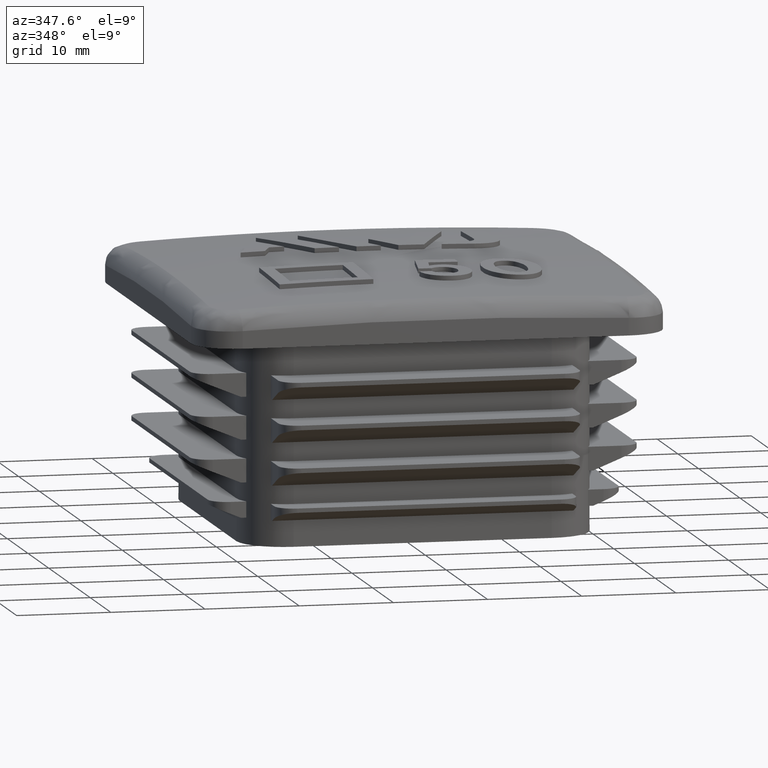
[diagram: clean part render]
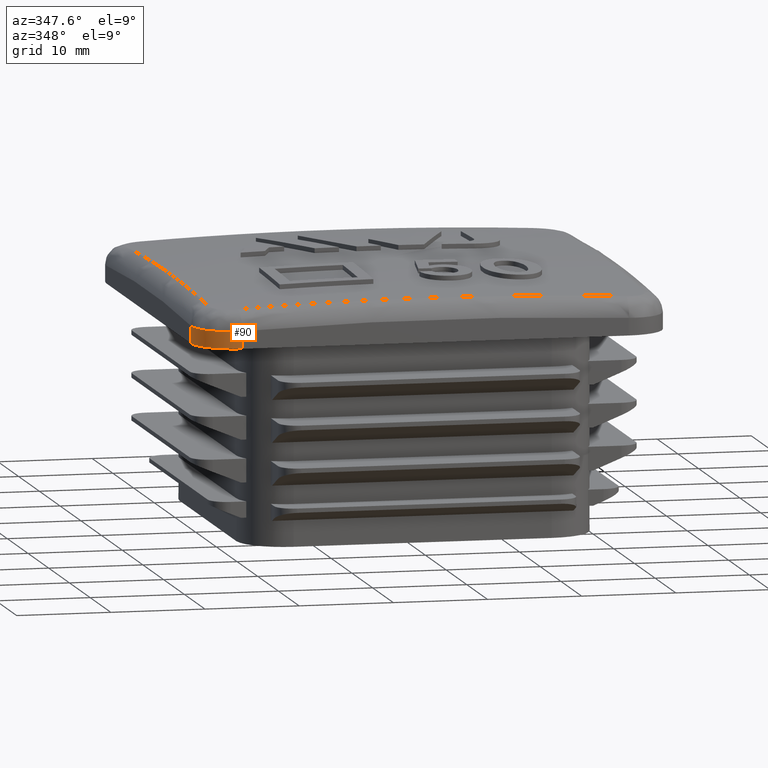
[diagram: same view with one face highlighted and labeled with its STEP entity id]
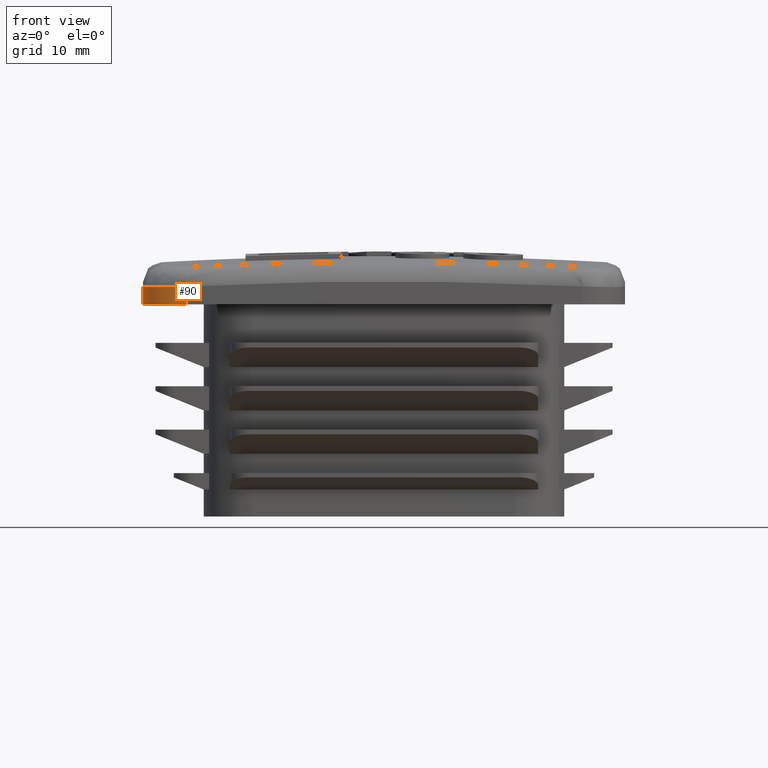
[diagram: same view with one face highlighted and labeled with its STEP entity id]
A machine part, auxiliary view. The second image highlights one B-rep face of the part: STEP entity #90.
A second angle (front view) of the same face is appended — the face is thin or edge-on in the first view.
In plain terms, the highlighted cylindrical surface (partial cylindrical patch) has radius 4.5 mm, axis along (0, 0, -1).
Its self-contained STEP definition (entity closure, byte-faithful):
#90 = ADVANCED_FACE( '', ( #388 ), #389, .T. );
#388 = FACE_OUTER_BOUND( '', #1133, .T. );
#389 = CYLINDRICAL_SURFACE( '', #1134, 4.50000000000000 );
#1133 = EDGE_LOOP( '', ( #3559, #3560, #3561, #3562 ) );
#1134 = AXIS2_PLACEMENT_3D( '', #3563, #3564, #3565 );
#3559 = ORIENTED_EDGE( '', *, *, #5707, .T. );
#3560 = ORIENTED_EDGE( '', *, *, #5708, .T. );
#3561 = ORIENTED_EDGE( '', *, *, #5709, .F. );
#3562 = ORIENTED_EDGE( '', *, *, #5710, .T. );
#3563 = CARTESIAN_POINT( '', ( -20.5000000000000, -20.5000000000000, -77.5471066848509 ) );
#3564 = DIRECTION( '', ( 0.000000000000000, 0.000000000000000, -1.00000000000000 ) );
#3565 = DIRECTION( '', ( 0.000000000000000, -1.00000000000000, 0.000000000000000 ) );
#5707 = EDGE_CURVE( '', #6507, #6508, #6509, .T. );
#5708 = EDGE_CURVE( '', #6508, #6510, #6511, .T. );
#5709 = EDGE_CURVE( '', #6512, #6510, #6513, .T. );
#5710 = EDGE_CURVE( '', #6512, #6507, #6514, .T. );
#6507 = VERTEX_POINT( '', #8682 );
#6508 = VERTEX_POINT( '', #8683 );
#6509 = LINE( '', #8684, #8685 );
#6510 = VERTEX_POINT( '', #8686 );
#6511 = B_SPLINE_CURVE_WITH_KNOTS( '', 3, ( #8687, #8688, #8689, #8690, #8691, #8692, #8693, #8694, #8695, #8696, #8697, #8698, #8699, #8700, #8701, #8702, #8703, #8704, #8705, #8706, #8707, #8708, #8709, #8710, #8711, #8712, #8713, #8714, #8715, #8716, #8717, #8718, #8719, #8720, #8721, #8722, #8723, #8724, #8725, #8726, #8727, #8728, #8729, #8730, #8731, #8732, #8733, #8734, #8735 ), .UNSPECIFIED., .F., .F., ( 4, 1, 2, 2, 2, 1, 2, 1, 2, 2, 2, 2, 1, 1, 2, 2, 2, 2, 1, 2, 1, 2, 2, 2, 1, 2, 1, 2, 4 ), ( 0.000000000000000, 0.000442954297359166, 0.000885908594718332, 0.000996647169058120, 0.00105201645622801, 0.00110738574339791, 0.00132886289207747, 0.00177181718943660, 0.00221477148679572, 0.00243624863547529, 0.00249161792264518, 0.00254698720981507, 0.00265772578415485, 0.00310068008151400, 0.00354363437887316, 0.00398658867623231, 0.00404195796340221, 0.00409732725057211, 0.00420806582491191, 0.00442954297359151, 0.00487249727095070, 0.00531545156830988, 0.00553692871698948, 0.00559229800415938, 0.00564766729132928, 0.00575840586566907, 0.00620136016302820, 0.00664431446038733, 0.00708726875774646 ), .UNSPECIFIED. );
#6512 = VERTEX_POINT( '', #8736 );
#6513 = LINE( '', #8737, #8738 );
#6514 = CIRCLE( '', #8739, 4.50000000000000 );
#8682 = CARTESIAN_POINT( '', ( -20.5000000000000, -25.0000000000000, 22.0000000000000 ) );
#8683 = CARTESIAN_POINT( '', ( -20.5000000000000, -25.0000000000000, 23.8526878253238 ) );
#8684 = CARTESIAN_POINT( '', ( -20.5000000000000, -25.0000000000000, -77.5471066848509 ) );
#8685 = VECTOR( '', #10796, 1000.00000000000 );
#8686 = CARTESIAN_POINT( '', ( -25.0000000000000, -20.5000000000000, 23.8526878253238 ) );
#8687 = CARTESIAN_POINT( '', ( -20.5000000000000, -25.0000000000000, 23.8526878253238 ) );
#8688 = CARTESIAN_POINT( '', ( -20.6485207728439, -25.0000000000000, 23.8485093278900 ) );
#8689 = CARTESIAN_POINT( '', ( -20.9439265958905, -24.9853310627443, 23.8406104728752 ) );
#8690 = CARTESIAN_POINT( '', ( -21.2361201787005, -24.9418551167326, 23.8336116613763 ) );
#8691 = CARTESIAN_POINT( '', ( -21.4177263343380, -24.9055817138584, 23.8295218556472 ) );
#8692 = CARTESIAN_POINT( '', ( -21.4539967077946, -24.8978709462711, 23.8287181495582 ) );
#8693 = CARTESIAN_POINT( '', ( -21.5083254206092, -24.8856156341827, 23.8275341320656 ) );
#8694 = CARTESIAN_POINT( '', ( -21.5264067345215, -24.8814190399243, 23.8271433897695 ) );
#8695 = CARTESIAN_POINT( '', ( -21.5624666470728, -24.8728146784354, 23.8263707338077 ) );
#8696 = CARTESIAN_POINT( '', ( -21.6523952195560, -24.8507675760014, 23.8244603968221 ) );
#8697 = CARTESIAN_POINT( '', ( -21.7412251272563, -24.8260573678380, 23.8226558676005 ) );
#8698 = CARTESIAN_POINT( '', ( -21.9523447584309, -24.7617300909477, 23.8185245837972 ) );
#8699 = CARTESIAN_POINT( '', ( -22.2283216201104, -24.6625899400031, 23.8135474984540 ) );
#8700 = CARTESIAN_POINT( '', ( -22.4934167108894, -24.5370729323205, 23.8096187810812 ) );
#8701 = CARTESIAN_POINT( '', ( -22.6880955300936, -24.4328939678329, 23.8070714151610 ) );
#8702 = CARTESIAN_POINT( '', ( -22.7522968297346, -24.3964911455786, 23.8062889395935 ) );
#8703 = CARTESIAN_POINT( '', ( -22.8316677554370, -24.3488528478374, 23.8053957158161 ) );
#8704 = CARTESIAN_POINT( '', ( -22.8474978787696, -24.3392183846726, 23.8052213171802 ) );
#8705 = CARTESIAN_POINT( '', ( -22.8790694884226, -24.3197346066569, 23.8048810617703 ) );
#8706 = CARTESIAN_POINT( '', ( -22.8948211095737, -24.3098787593302, 23.8047151035942 ) );
#8707 = CARTESIAN_POINT( '', ( -22.9418276978091, -24.2800601483092, 23.8042312837386 ) );
#8708 = CARTESIAN_POINT( '', ( -23.0969653829048, -24.1789258109273, 23.8027111491555 ) );
#8709 = CARTESIAN_POINT( '', ( -23.3624675834233, -23.9814719504856, 23.8007956125753 ) );
#8710 = CARTESIAN_POINT( '', ( -23.5794282678225, -23.7846077107031, 23.8002298947123 ) );
#8711 = CARTESIAN_POINT( '', ( -23.7868439459063, -23.5770412972747, 23.8002341379152 ) );
#8712 = CARTESIAN_POINT( '', ( -23.8857800729371, -23.4679078907969, 23.8005211928674 ) );
#8713 = CARTESIAN_POINT( '', ( -23.9915429169405, -23.3389208439811, 23.8011749486421 ) );
#8714 = CARTESIAN_POINT( '', ( -24.0032172022317, -23.3245024559560, 23.8012521943971 ) );
#8715 = CARTESIAN_POINT( '', ( -24.0264105514125, -23.2954916405885, 23.8014159542843 ) );
#8716 = CARTESIAN_POINT( '', ( -24.0379080934202, -23.2809260867457, 23.8015023177701 ) );
#8717 = CARTESIAN_POINT( '', ( -24.0720919699467, -23.2370665443071, 23.8017746840523 ) );
#8718 = CARTESIAN_POINT( '', ( -24.1392418415227, -23.1486741287156, 23.8023726519382 ) );
#8719 = CARTESIAN_POINT( '', ( -24.2027798808031, -23.0582848376403, 23.8031284952598 ) );
#8720 = CARTESIAN_POINT( '', ( -24.3251166089329, -22.8748860083776, 23.8048473317708 ) );
#8721 = CARTESIAN_POINT( '', ( -24.4756160043411, -22.6233790877841, 23.8076905522583 ) );
#8722 = CARTESIAN_POINT( '', ( -24.6011374142465, -22.3580625736617, 23.8116253774470 ) );
#8723 = CARTESIAN_POINT( '', ( -24.6857352863892, -22.1537990406396, 23.8149934818115 ) );
#8724 = CARTESIAN_POINT( '', ( -24.7123412146523, -22.0848302728991, 23.8161858043620 ) );
#8725 = CARTESIAN_POINT( '', ( -24.7435658838837, -21.9974954701261, 23.8177650173668 ) );
#8726 = CARTESIAN_POINT( '', ( -24.7497124668176, -21.9799621964609, 23.8180854928141 ) );
#8727 = CARTESIAN_POINT( '', ( -24.7617701837954, -21.9448733695693, 23.8187336939919 ) );
#8728 = CARTESIAN_POINT( '', ( -24.7795128456046, -21.8921819079216, 23.8197173086238 ) );
#8729 = CARTESIAN_POINT( '', ( -24.7962300038467, -21.8393168382496, 23.8207346555092 ) );
#8730 = CARTESIAN_POINT( '', ( -24.8496983836581, -21.6627181076853, 23.8241999968282 ) );
#8731 = CARTESIAN_POINT( '', ( -24.9208465142967, -21.3777221384345, 23.8302182161162 ) );
#8732 = CARTESIAN_POINT( '', ( -24.9638381217120, -21.0879595287214, 23.8371622461118 ) );
#8733 = CARTESIAN_POINT( '', ( -24.9926662502518, -20.7957991685450, 23.8445718236366 ) );
#8734 = CARTESIAN_POINT( '', ( -25.0000000000000, -20.6485203544585, 23.8485093396609 ) );
#8735 = CARTESIAN_POINT( '', ( -25.0000000000000, -20.5000000000000, 23.8526878253238 ) );
#8736 = CARTESIAN_POINT( '', ( -25.0000000000000, -20.5000000000000, 22.0000000000000 ) );
#8737 = CARTESIAN_POINT( '', ( -25.0000000000000, -20.5000000000000, -77.5471066848509 ) );
#8738 = VECTOR( '', #10797, 1000.00000000000 );
#8739 = AXIS2_PLACEMENT_3D( '', #10798, #10799, #10800 );
#10796 = DIRECTION( '', ( 0.000000000000000, 0.000000000000000, 1.00000000000000 ) );
#10797 = DIRECTION( '', ( 0.000000000000000, 0.000000000000000, 1.00000000000000 ) );
#10798 = CARTESIAN_POINT( '', ( -20.5000000000000, -20.5000000000000, 22.0000000000000 ) );
#10799 = DIRECTION( '', ( 6.12303176911189E-017, 6.12303176911189E-017, 1.00000000000000 ) );
#10800 = DIRECTION( '', ( 1.00000000000000, 0.000000000000000, -6.12303176911189E-017 ) );